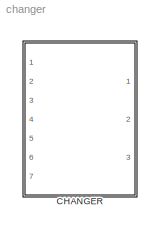
MODEL changer
KIND model
CONFIG AbsTol = auto
CONFIG FixedStep = auto
CONFIG MaxStep = auto
CONFIG MinStep = auto
CONFIG RelTol = 1e-3
CONFIG Solver = ode45
CONFIG SolverMode = Auto
CONFIG StartTime = 0.0
CONFIG StopTime = 10.0
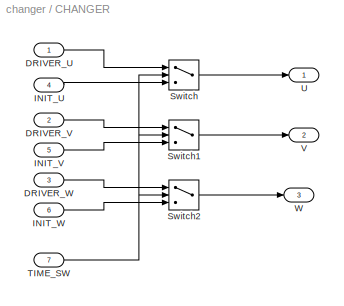
BLOCK [SubSystem] CHANGER
  MaskEnableString = on
  MaskIconFrame = on
  MaskIconOpaque = on
  MaskIconRotate = none
  MaskIconUnits = autoscale
  MaskPromptString = Threshold time
  MaskStyleString = edit
  MaskToolTipString = on
  MaskTunableValueString = on
  MaskValueString = 0
  MaskVariables = T=@1;
  MaskVisibilityString = on
  Ports = [7, 3]
  TreatAsAtomicUnit = off
BLOCK [Inport] CHANGER/DRIVER_U
BLOCK [Inport] CHANGER/DRIVER_V
  Port = 2
BLOCK [Inport] CHANGER/DRIVER_W
  Port = 3
BLOCK [Inport] CHANGER/INIT_U
  Port = 4
BLOCK [Inport] CHANGER/INIT_V
  Port = 5
BLOCK [Inport] CHANGER/INIT_W
  Port = 6
BLOCK [Switch] CHANGER/Switch
  Criteria = u2 > Threshold
  InputSameDT = off
  Threshold = T
BLOCK [Switch] CHANGER/Switch1
  Criteria = u2 > Threshold
  InputSameDT = off
  Threshold = T
BLOCK [Switch] CHANGER/Switch2
  Criteria = u2 > Threshold
  InputSameDT = off
  Threshold = T
BLOCK [Inport] CHANGER/TIME_SW
  Port = 7
BLOCK [Outport] CHANGER/U
BLOCK [Outport] CHANGER/V
  Port = 2
BLOCK [Outport] CHANGER/W
  Port = 3
LINE CHANGER/DRIVER_U:1 -> CHANGER/Switch:1
LINE CHANGER/DRIVER_V:1 -> CHANGER/Switch1:1
LINE CHANGER/DRIVER_W:1 -> CHANGER/Switch2:1
LINE CHANGER/INIT_U:1 -> CHANGER/Switch:3
LINE CHANGER/INIT_V:1 -> CHANGER/Switch1:3
LINE CHANGER/INIT_W:1 -> CHANGER/Switch2:3
LINE CHANGER/Switch1:1 -> CHANGER/V:1
LINE CHANGER/Switch2:1 -> CHANGER/W:1
LINE CHANGER/Switch:1 -> CHANGER/U:1
NET CHANGER/TIME_SW:1 -> CHANGER/Switch1:2, CHANGER/Switch2:2, CHANGER/Switch:2
note: NET lines group one-source signal fan-out (src -> all destinations, sorted); 1:1 wires keep LINE
